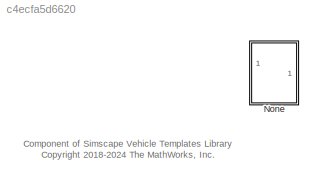
MODEL slx_c4ecfa5d6620
KIND library
CONFIG AbsTol = auto
CONFIG EnableMultiTasking = off
CONFIG FixedStep = auto
CONFIG MaxStep = auto
CONFIG MinStep = auto
CONFIG RelTol = 1e-3
CONFIG SampleTimeConstraint = Unconstrained
CONFIG SolverName = VariableStepAuto
CONFIG StartTime = 0.0
CONFIG StopTime = 10.0
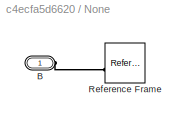
BLOCK [SubSystem] None
  VariantControl = None
BLOCK [PMIOPort] None/B
  Side = Left
BLOCK [Reference] None/Reference Frame  REF=sm_lib/Frames and
Transforms/Reference
Frame
  NameLocation = top
  SourceBlock = sm_lib/Frames and\nTransforms/Reference\nFrame
  SourceType = Reference\nFrame
ANNOTATION (root): Component of Simscape Vehicle Templates Library <copyright redacted>
PLINE None/B:RConn1 -- None/Reference Frame:RConn1
